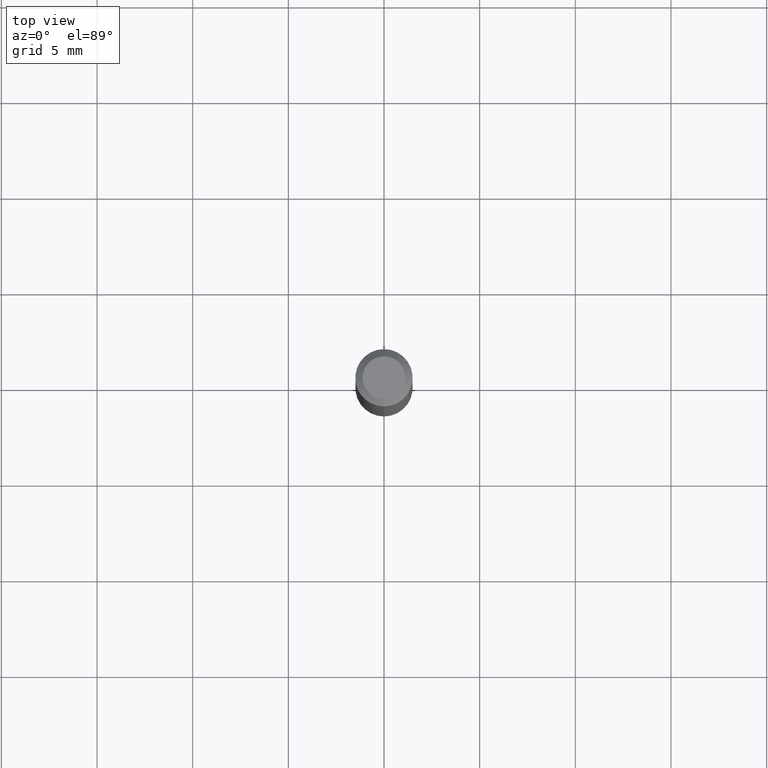
[diagram: clean part render]
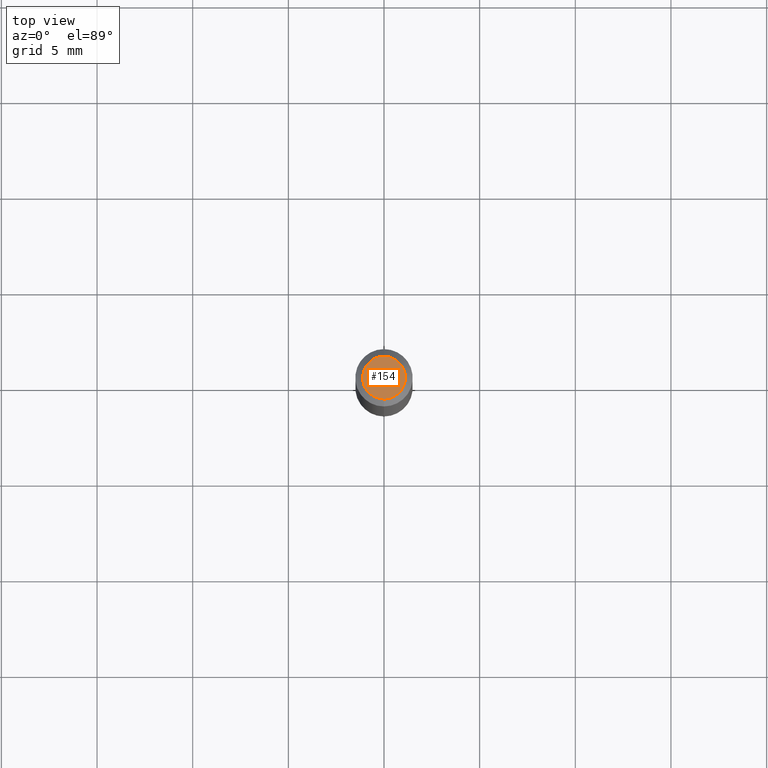
[diagram: same view with one face highlighted and labeled with its STEP entity id]
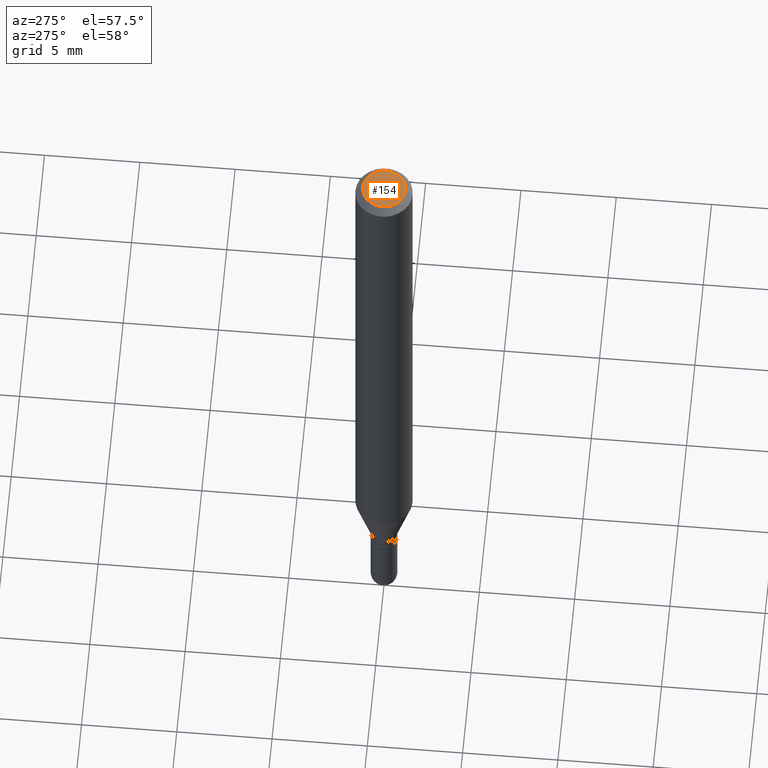
[diagram: same view with one face highlighted and labeled with its STEP entity id]
A machine part, top view. The second image highlights one B-rep face of the part: STEP entity #154.
A second angle (auxiliary view) of the same face is appended — the face is thin or edge-on in the first view.
In plain terms, the highlighted planar face has unit normal (0, -0, -1).
Its self-contained STEP definition (entity closure, byte-faithful):
#34 = DIRECTION ( 'NONE',  ( -2.445455591500657940E-29, 3.491500263023452192E-15, 1.000000000000000000 ) ) ;
#51 = ORIENTED_EDGE ( 'NONE', *, *, #237, .T. ) ;
#93 = EDGE_CURVE ( 'NONE', #403, #442, #469, .T. ) ;
#104 = CARTESIAN_POINT ( 'NONE',  ( -3.536586717851222218E-16, -0.04404999999999999888, 1.299391773149393674E-16 ) ) ;
#109 = CARTESIAN_POINT ( 'NONE',  ( 5.835201672344848356E-46, -8.331211674665753758E-32, -2.386140927124367647E-17 ) ) ;
#128 = AXIS2_PLACEMENT_3D ( 'NONE', #321, #466, #203 ) ;
#154 = ADVANCED_FACE ( 'NONE', ( #283 ), #245, .F. ) ;
#159 = CARTESIAN_POINT ( 'NONE',  ( 5.835201672344848356E-46, -8.331211674665753758E-32, -2.386140927124367647E-17 ) ) ;
#166 = DIRECTION ( 'NONE',  ( -6.982962677686265133E-15, -1.000000000000000000, 3.491500263023451797E-15 ) ) ;
#178 = ORIENTED_EDGE ( 'NONE', *, *, #93, .T. ) ;
#184 = AXIS2_PLACEMENT_3D ( 'NONE', #159, #34, #166 ) ;
#203 = DIRECTION ( 'NONE',  ( 6.982962677686265922E-15, 1.000000000000000000, -3.491500263023451797E-15 ) ) ;
#220 = CIRCLE ( 'NONE', #257, 0.04404999999999999888 ) ;
#237 = EDGE_CURVE ( 'NONE', #442, #403, #220, .T. ) ;
#245 = PLANE ( 'NONE',  #128 ) ;
#249 = DIRECTION ( 'NONE',  ( -2.445455591500657940E-29, 3.491500263023452192E-15, 1.000000000000000000 ) ) ;
#257 = AXIS2_PLACEMENT_3D ( 'NONE', #109, #249, #279 ) ;
#279 = DIRECTION ( 'NONE',  ( -6.982962677686265133E-15, -1.000000000000000000, 3.491500263023451797E-15 ) ) ;
#283 = FACE_OUTER_BOUND ( 'NONE', #478, .T. ) ;
#321 = CARTESIAN_POINT ( 'NONE',  ( 3.075995059520799729E-16, 0.04404999999999999888, -1.657312912218049006E-16 ) ) ;
#403 = VERTEX_POINT ( 'NONE', #405 ) ;
#405 = CARTESIAN_POINT ( 'NONE',  ( 3.599717260347271507E-16, 0.04404999999999999888, -1.776619958574267204E-16 ) ) ;
#442 = VERTEX_POINT ( 'NONE', #104 ) ;
#466 = DIRECTION ( 'NONE',  ( 2.445455591500657940E-29, -3.491500263023451797E-15, -1.000000000000000000 ) ) ;
#469 = CIRCLE ( 'NONE', #184, 0.04404999999999999888 ) ;
#478 = EDGE_LOOP ( 'NONE', ( #178, #51 ) ) ;